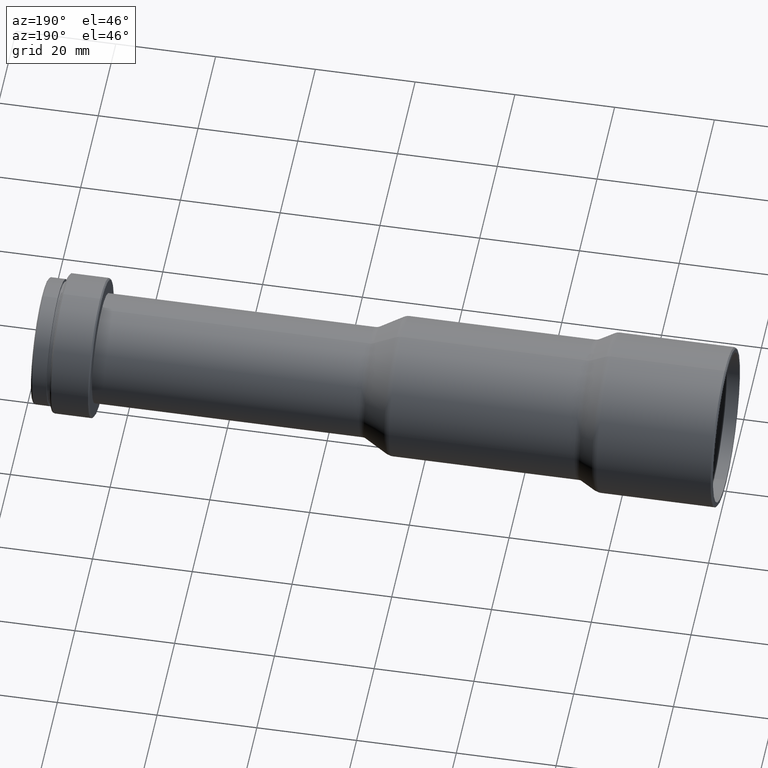
[diagram: clean part render]
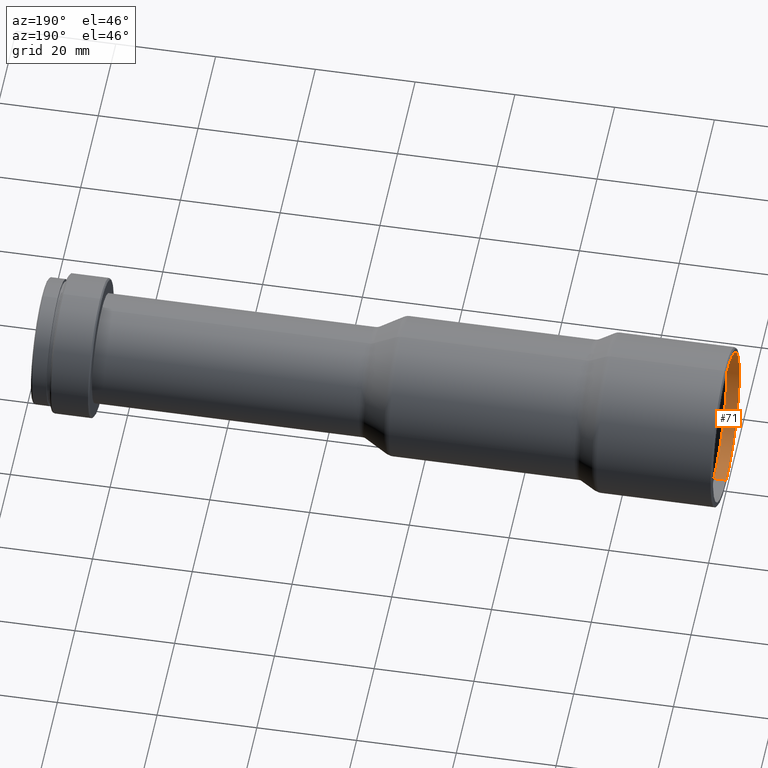
[diagram: same view with one face highlighted and labeled with its STEP entity id]
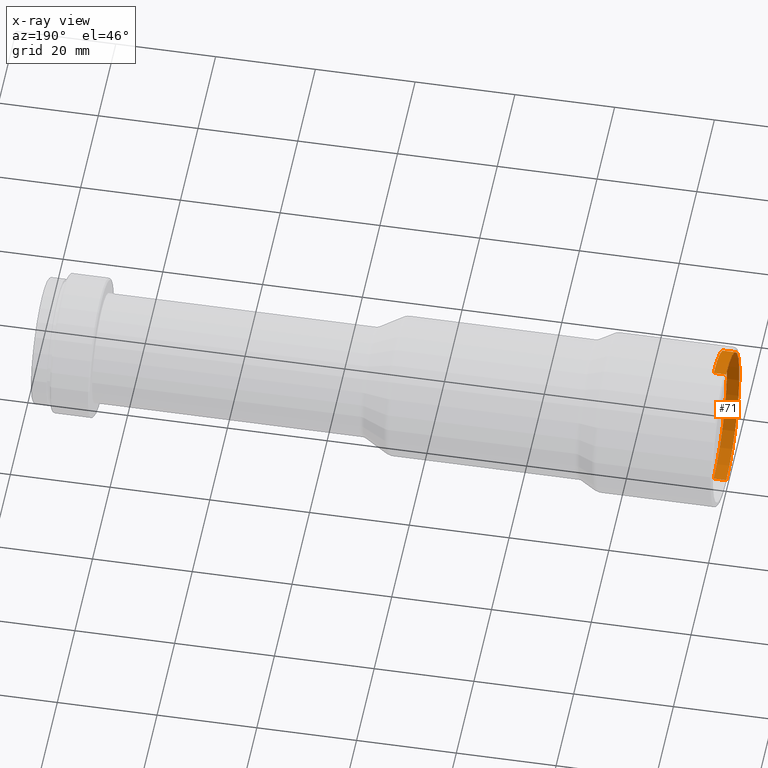
[diagram: x-ray of the same camera — body ghosted, the highlighted face saturated]
A machine part, auxiliary view. The second image highlights one B-rep face of the part: STEP entity #71.
The next image is the same camera in x-ray: the body ghosted, the highlighted face saturated — about 0% of this face is hidden behind the body in this view.
In plain terms, the highlighted cylindrical surface (partial cylindrical patch) has radius 15 mm, axis along (-1, -0, -0).
Its self-contained STEP definition (entity closure, byte-faithful):
#20 = EDGE_CURVE ( 'NONE', #1017, #159, #313, .T. ) ;
#34 = CARTESIAN_POINT ( 'NONE',  ( 0.0000000000000000000, 1.836970198721029600E-015, -15.00000000000000000 ) ) ;
#36 = EDGE_CURVE ( 'NONE', #474, #440, #382, .T. ) ;
#71 = ADVANCED_FACE ( 'NONE', ( #816 ), #592, .F. ) ;
#108 = CARTESIAN_POINT ( 'NONE',  ( 2.500000000000000000, 0.0000000000000000000, 15.00000000000000000 ) ) ;
#130 = DIRECTION ( 'NONE',  ( -1.000000000000000000, -0.0000000000000000000, -0.0000000000000000000 ) ) ;
#147 = DIRECTION ( 'NONE',  ( 0.0000000000000000000, 0.0000000000000000000, 1.000000000000000000 ) ) ;
#159 = VERTEX_POINT ( 'NONE', #397 ) ;
#171 = ORIENTED_EDGE ( 'NONE', *, *, #20, .F. ) ;
#227 = DIRECTION ( 'NONE',  ( -1.000000000000000000, -0.0000000000000000000, -0.0000000000000000000 ) ) ;
#264 = EDGE_CURVE ( 'NONE', #474, #1017, #608, .T. ) ;
#283 = EDGE_LOOP ( 'NONE', ( #597, #865, #755, #171 ) ) ;
#290 = CARTESIAN_POINT ( 'NONE',  ( 0.0000000000000000000, 0.0000000000000000000, 0.0000000000000000000 ) ) ;
#292 = AXIS2_PLACEMENT_3D ( 'NONE', #560, #227, #641 ) ;
#313 = LINE ( 'NONE', #108, #868 ) ;
#382 = LINE ( 'NONE', #963, #753 ) ;
#383 = AXIS2_PLACEMENT_3D ( 'NONE', #290, #475, #880 ) ;
#397 = CARTESIAN_POINT ( 'NONE',  ( 0.0000000000000000000, 0.0000000000000000000, 15.00000000000000000 ) ) ;
#406 = CARTESIAN_POINT ( 'NONE',  ( 2.500000000000000000, 0.0000000000000000000, 0.0000000000000000000 ) ) ;
#440 = VERTEX_POINT ( 'NONE', #34 ) ;
#474 = VERTEX_POINT ( 'NONE', #871 ) ;
#475 = DIRECTION ( 'NONE',  ( -1.000000000000000000, 0.0000000000000000000, 0.0000000000000000000 ) ) ;
#523 = CIRCLE ( 'NONE', #383, 15.00000000000000000 ) ;
#560 = CARTESIAN_POINT ( 'NONE',  ( 2.500000000000000000, 0.0000000000000000000, 0.0000000000000000000 ) ) ;
#592 = CYLINDRICAL_SURFACE ( 'NONE', #292, 15.00000000000000000 ) ;
#597 = ORIENTED_EDGE ( 'NONE', *, *, #264, .F. ) ;
#608 = CIRCLE ( 'NONE', #974, 15.00000000000000000 ) ;
#641 = DIRECTION ( 'NONE',  ( 0.0000000000000000000, 0.0000000000000000000, 1.000000000000000000 ) ) ;
#753 = VECTOR ( 'NONE', #130, 1000.000000000000000 ) ;
#755 = ORIENTED_EDGE ( 'NONE', *, *, #873, .T. ) ;
#816 = FACE_OUTER_BOUND ( 'NONE', #283, .T. ) ;
#865 = ORIENTED_EDGE ( 'NONE', *, *, #36, .T. ) ;
#868 = VECTOR ( 'NONE', #879, 1000.000000000000000 ) ;
#871 = CARTESIAN_POINT ( 'NONE',  ( 2.500000000000000000, 1.836970198721029600E-015, -15.00000000000000000 ) ) ;
#873 = EDGE_CURVE ( 'NONE', #440, #159, #523, .T. ) ;
#879 = DIRECTION ( 'NONE',  ( -1.000000000000000000, -0.0000000000000000000, -0.0000000000000000000 ) ) ;
#880 = DIRECTION ( 'NONE',  ( 0.0000000000000000000, 0.0000000000000000000, 1.000000000000000000 ) ) ;
#919 = CARTESIAN_POINT ( 'NONE',  ( 2.500000000000000000, 0.0000000000000000000, 15.00000000000000000 ) ) ;
#963 = CARTESIAN_POINT ( 'NONE',  ( 2.500000000000000000, 1.836970198721029600E-015, -15.00000000000000000 ) ) ;
#974 = AXIS2_PLACEMENT_3D ( 'NONE', #406, #997, #147 ) ;
#997 = DIRECTION ( 'NONE',  ( -1.000000000000000000, 0.0000000000000000000, 0.0000000000000000000 ) ) ;
#1017 = VERTEX_POINT ( 'NONE', #919 ) ;